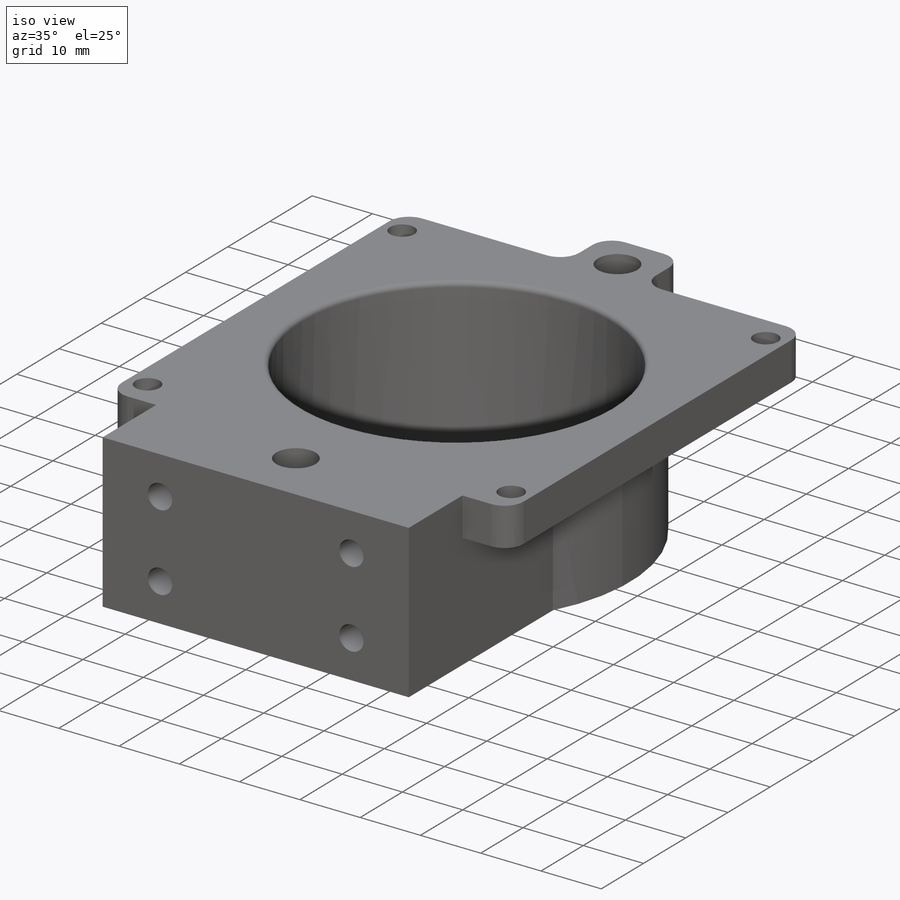
[diagram: iso view]
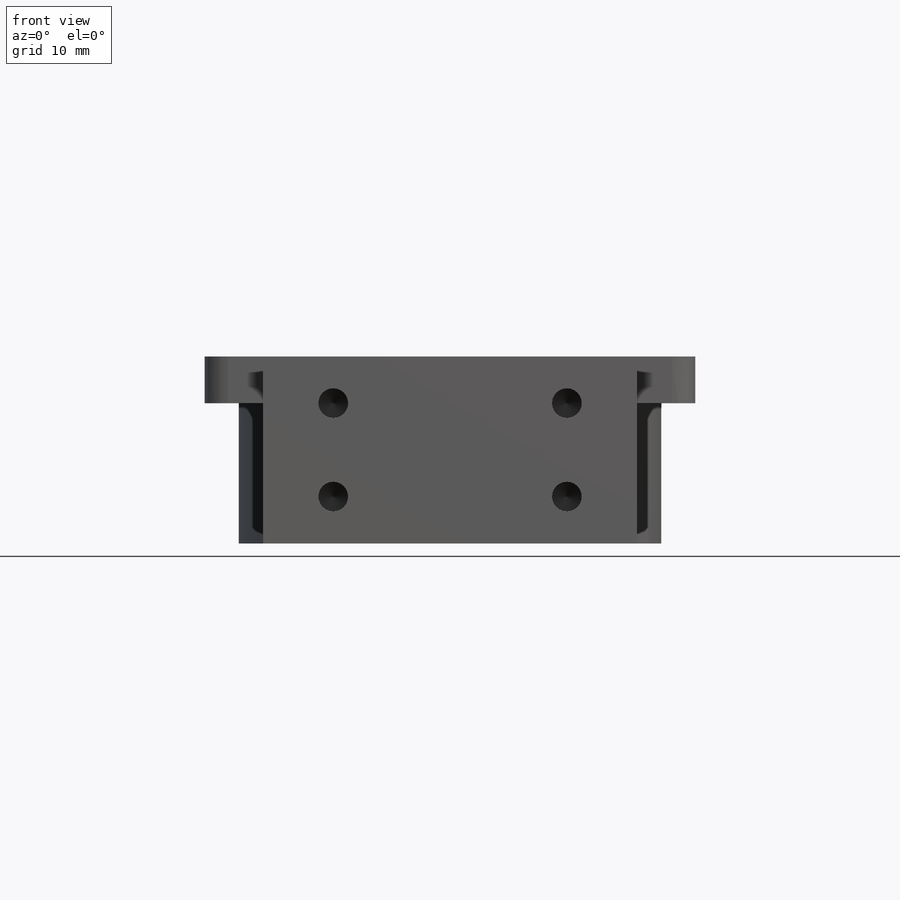
[diagram: front view]
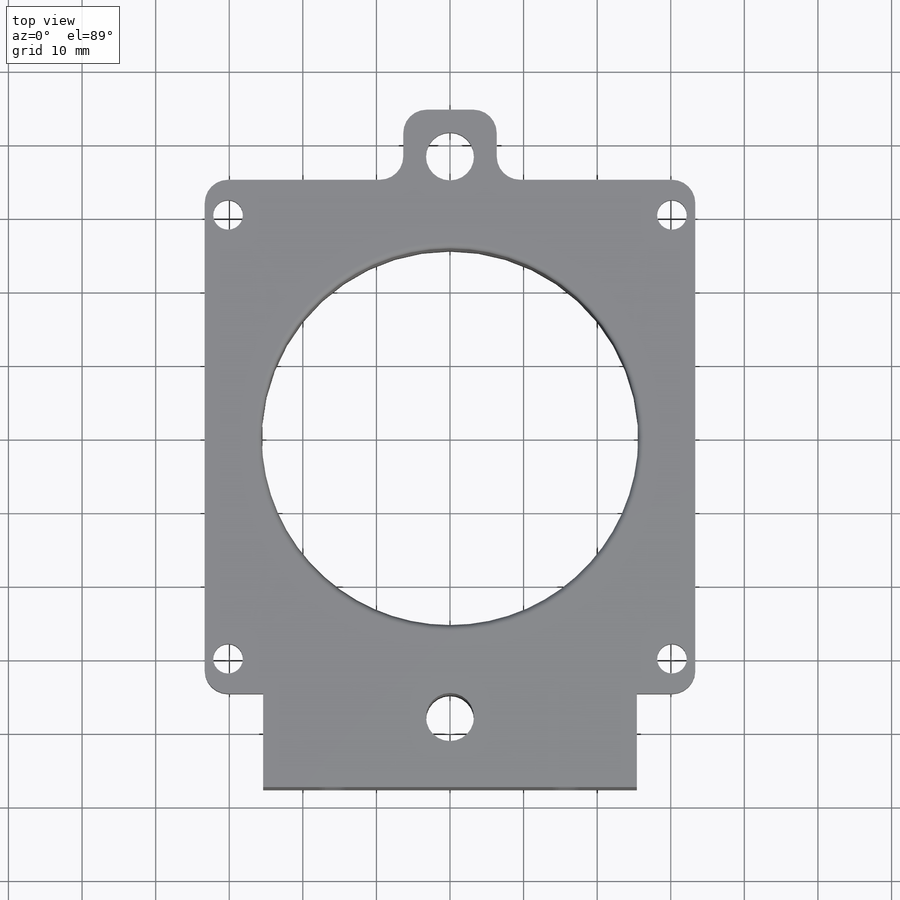
[diagram: top view]
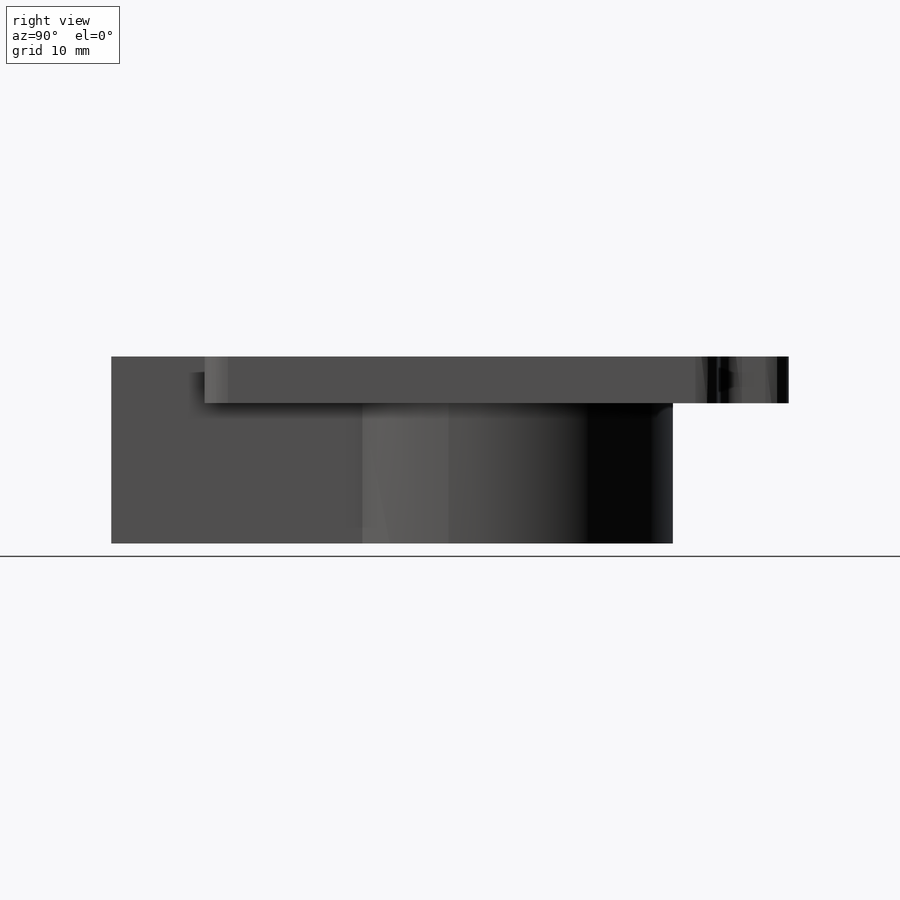
[diagram: right view]
SOLIDWORKS PART (.sldprt)
format: sldprt  version: not decoded by parser v0  size: 871,936 bytes
history: native  units: mm
features: sketch x10, thread x8, extrude x3, hole x3, plane x2, fillet x2, material x1, cut_extrude x1 (+13 scaffold rows collapsed)
feature tree (43):
  scaffold x13  (default folders/planes/origin — collapsed)
  material  "Material <not specified>"
  sketch  "Sketch1"  dims[c1.D1=51.181mm c1.D2=~68.646996mm c2.D1=57.531mm c2.D2=6.35mm]
  extrude  "Boss-Extrude1"  Depth=19.05mm
  plane  "Plane2"  Offset=0mm
  sketch  "Sketch4"  dims[c1.D1=69.85mm c1.D2=~18.654739mm c2.D2=90.0deg c2.D3=12.7mm c3.D2=12.7mm c3.D3=9.525mm]
  extrude  "Boss-Extrude2"  Depth=6.35mm
  fillet  "Fillet1"  Radius=3.175mm
  plane  "Plane3"  Offset=12.7mm
  sketch  "Sketch8"  dims[D1=25.4mm D2=50.8mm]
  extrude  "Boss-Extrude4"  Depth=38.1mm
  sketch  "Sketch5"  dims[D1=51.181mm]
  cut_extrude  "Cut-Extrude1"  [1 undecoded]
  fillet  "Fillet2"  Radius=0.79375mm
  hole  "#10-32 Tapped Hole1"  Diameter=4.0386mm Depth=6.35mm
  sketch  "Sketch10"  dims[D1=3.175mm]
  sketch  "Sketch9"  dims[hole-wizard template sketch: 61 standard entries collapsed; hole parameters above]
  thread  "Hole Thread1"  Diameter=4.826mm  [1 undecoded]
  thread  "Hole Thread2"  Diameter=4.826mm  [1 undecoded]
  thread  "Hole Thread3"  Diameter=4.826mm  [1 undecoded]
  thread  "Hole Thread4"  Diameter=4.826mm  [1 undecoded]
  hole  "F (0.257) Diameter Hole1"  Diameter=6.5278mm Depth=6.35mm
  sketch  "Sketch12"  dims[D1=38.1mm D2=38.1mm]
  sketch  "Sketch11"  dims[hole-wizard template sketch: 61 standard entries collapsed; hole parameters above]
  hole  "#10-32 Tapped Hole2"  Diameter=4.0386mm Depth=16.764mm
  sketch  "Sketch14"  dims[D1=15.875mm D2=6.35mm]
  sketch  "Sketch13"  dims[hole-wizard template sketch: 47 standard entries collapsed; hole parameters kept: c15.Tap Drill Depth=16.764mm c15.D3=~14.816244mm c15.Drill Angle=118.0deg]
  thread  "Hole Thread7"  Diameter=12.7mm  [1 undecoded]
  thread  "Hole Thread8"  Diameter=12.7mm  [1 undecoded]
  thread  "Hole Thread9"  Diameter=12.7mm  [1 undecoded]
  thread  "Hole Thread10"  Diameter=12.7mm  [1 undecoded]
decode coverage: 26 of 27 modeling features carry decoded parameters
note: ~ marks probable driven/reference dimensions
note: 9 parameter values undecoded
note: suppression state not decoded; provenance and decode notes live in map.json
